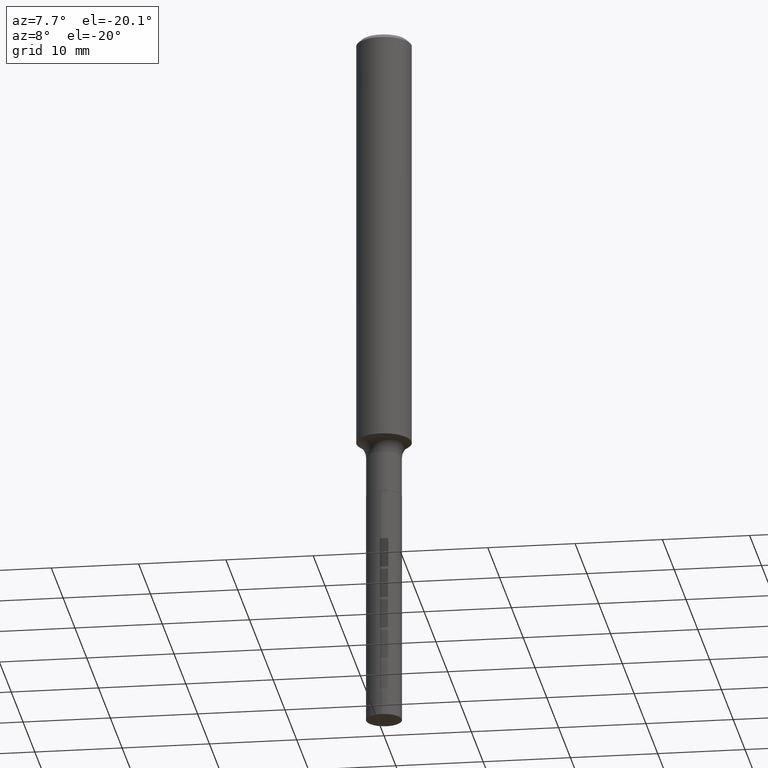
[diagram: clean part render]
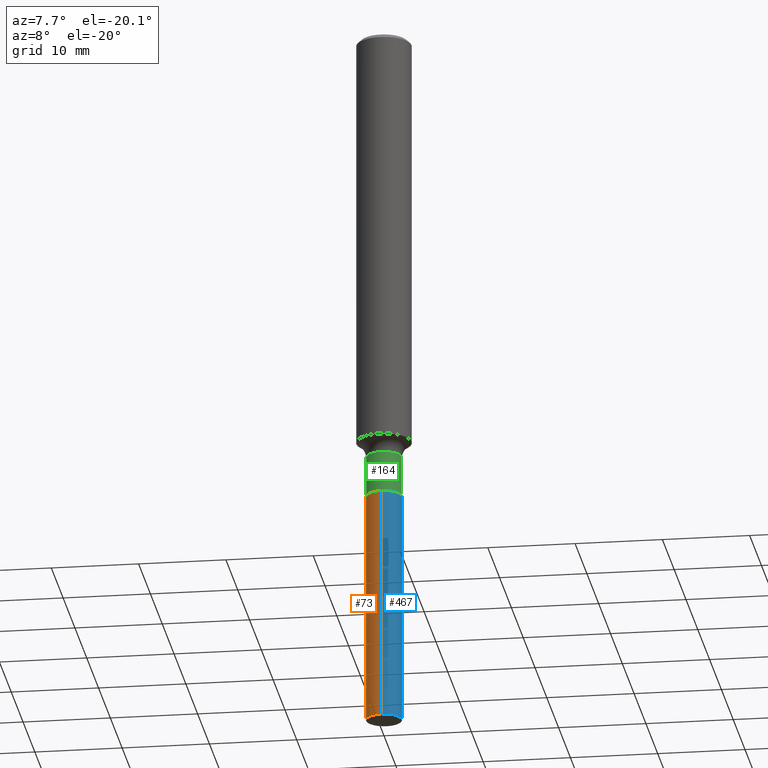
[diagram: same view with three faces highlighted in distinct colors, each labeled with its STEP entity id]
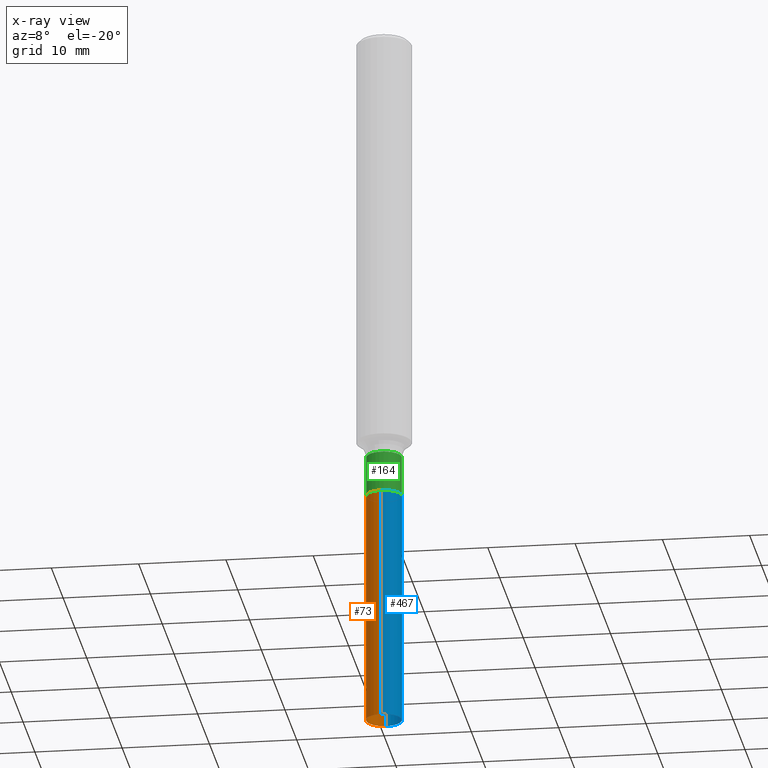
[diagram: x-ray of the same camera — body ghosted, the three highlighted faces saturated]
A machine part, auxiliary view with three faces highlighted in distinct colors.
The next image is the same camera in x-ray (body ghosted, the three faces saturated) — at least one of them is partly hidden behind the body in this view.
Their STEP definitions:

[orange] entity #73 — the highlighted cylindrical surface (edge-blend (fillet) strip) has radius 2.0447 mm, axis along (-0, 0, 1).
#1 = DIRECTION ( 'NONE',  ( -2.445357764823605070E-29, 3.491640356392940619E-15, 1.000000000000000000 ) ) ;
#6 = CARTESIAN_POINT ( 'NONE',  ( 7.885585719558198762E-29, -1.125886426831843108E-14, -3.224618447495242179 ) ) ;
#8 = DIRECTION ( 'NONE',  ( -6.982962677686266711E-15, -1.000000000000000000, 3.393599992129519526E-15 ) ) ;
#35 = EDGE_CURVE ( 'NONE', #120, #475, #58, .T. ) ;
#43 = ORIENTED_EDGE ( 'NONE', *, *, #35, .F. ) ;
#49 = EDGE_LOOP ( 'NONE', ( #43, #166, #266, #79 ) ) ;
#58 = LINE ( 'NONE', #221, #348 ) ;
#64 = CARTESIAN_POINT ( 'NONE',  ( 5.719869022869593535E-16, 0.08049999999998874722, -3.224618447495242624 ) ) ;
#67 = DIRECTION ( 'NONE',  ( -2.445357764823605070E-29, 3.491640356392940619E-15, 1.000000000000000000 ) ) ;
#73 = ADVANCED_FACE ( 'NONE', ( #487 ), #176, .T. ) ;
#79 = ORIENTED_EDGE ( 'NONE', *, *, #309, .F. ) ;
#97 = CARTESIAN_POINT ( 'NONE',  ( 5.284658090166081280E-29, -7.545091173240038191E-15, -2.161000000000000032 ) ) ;
#113 = CARTESIAN_POINT ( 'NONE',  ( -5.621284955536915100E-16, -0.08050000000000755163, -2.161000000000000032 ) ) ;
#120 = VERTEX_POINT ( 'NONE', #64 ) ;
#125 = VERTEX_POINT ( 'NONE', #299 ) ;
#142 = DIRECTION ( 'NONE',  ( -6.982962677686266711E-15, -1.000000000000000000, 3.393599992129519526E-15 ) ) ;
#144 = VECTOR ( 'NONE', #1, 39.37007874015748143 ) ;
#154 = CARTESIAN_POINT ( 'NONE',  ( -5.621284955536915100E-16, -0.08050000000000755163, -2.161000000000000032 ) ) ;
#166 = ORIENTED_EDGE ( 'NONE', *, *, #234, .T. ) ;
#176 = CYLINDRICAL_SURFACE ( 'NONE', #422, 0.08050000000000000211 ) ;
#190 = CARTESIAN_POINT ( 'NONE',  ( 5.284658090166081280E-29, -7.545091173240038191E-15, -2.161000000000000032 ) ) ;
#212 = VERTEX_POINT ( 'NONE', #113 ) ;
#217 = CIRCLE ( 'NONE', #307, 0.08050000000000000211 ) ;
#221 = CARTESIAN_POINT ( 'NONE',  ( 5.719869022869334197E-16, 0.08049999999999245259, -2.161000000000000476 ) ) ;
#228 = DIRECTION ( 'NONE',  ( -2.445357764823605070E-29, 3.491640356392940619E-15, 1.000000000000000000 ) ) ;
#231 = LINE ( 'NONE', #154, #144 ) ;
#234 = EDGE_CURVE ( 'NONE', #120, #125, #217, .T. ) ;
#258 = DIRECTION ( 'NONE',  ( -2.445357764823605070E-29, 3.491640356392940619E-15, 1.000000000000000000 ) ) ;
#263 = EDGE_CURVE ( 'NONE', #125, #212, #231, .T. ) ;
#266 = ORIENTED_EDGE ( 'NONE', *, *, #263, .T. ) ;
#299 = CARTESIAN_POINT ( 'NONE',  ( -5.621284955536654776E-16, -0.08050000000001125700, -3.224618447495241735 ) ) ;
#307 = AXIS2_PLACEMENT_3D ( 'NONE', #6, #67, #381 ) ;
#309 = EDGE_CURVE ( 'NONE', #475, #212, #490, .T. ) ;
#318 = CARTESIAN_POINT ( 'NONE',  ( 5.719869022869595507E-16, 0.08049999999999245259, -2.161000000000000476 ) ) ;
#326 = AXIS2_PLACEMENT_3D ( 'NONE', #190, #228, #8 ) ;
#348 = VECTOR ( 'NONE', #258, 39.37007874015748143 ) ;
#381 = DIRECTION ( 'NONE',  ( -6.982962677686266711E-15, -1.000000000000000000, 6.787199984259039052E-15 ) ) ;
#422 = AXIS2_PLACEMENT_3D ( 'NONE', #97, #489, #142 ) ;
#475 = VERTEX_POINT ( 'NONE', #318 ) ;
#487 = FACE_OUTER_BOUND ( 'NONE', #49, .T. ) ;
#489 = DIRECTION ( 'NONE',  ( -2.445357764823605070E-29, 3.491640356392940619E-15, 1.000000000000000000 ) ) ;
#490 = CIRCLE ( 'NONE', #326, 0.08050000000000000211 ) ;

[blue] entity #467 — the highlighted cylindrical surface (edge-blend (fillet) strip) has radius 2.0447 mm, axis along (-0, 0, 1).
#1 = DIRECTION ( 'NONE',  ( -2.445357764823605070E-29, 3.491640356392940619E-15, 1.000000000000000000 ) ) ;
#11 = CIRCLE ( 'NONE', #233, 0.08050000000000000211 ) ;
#14 = FACE_OUTER_BOUND ( 'NONE', #129, .T. ) ;
#35 = EDGE_CURVE ( 'NONE', #120, #475, #58, .T. ) ;
#58 = LINE ( 'NONE', #221, #348 ) ;
#64 = CARTESIAN_POINT ( 'NONE',  ( 5.719869022869593535E-16, 0.08049999999998874722, -3.224618447495242624 ) ) ;
#72 = DIRECTION ( 'NONE',  ( -6.982962677686266711E-15, -1.000000000000000000, 3.393599992129519526E-15 ) ) ;
#113 = CARTESIAN_POINT ( 'NONE',  ( -5.621284955536915100E-16, -0.08050000000000755163, -2.161000000000000032 ) ) ;
#116 = CARTESIAN_POINT ( 'NONE',  ( 5.284658090166081280E-29, -7.545091173240038191E-15, -2.161000000000000032 ) ) ;
#120 = VERTEX_POINT ( 'NONE', #64 ) ;
#122 = CIRCLE ( 'NONE', #151, 0.08050000000000000211 ) ;
#125 = VERTEX_POINT ( 'NONE', #299 ) ;
#129 = EDGE_LOOP ( 'NONE', ( #313, #283, #194, #328 ) ) ;
#144 = VECTOR ( 'NONE', #1, 39.37007874015748143 ) ;
#151 = AXIS2_PLACEMENT_3D ( 'NONE', #272, #349, #189 ) ;
#154 = CARTESIAN_POINT ( 'NONE',  ( -5.621284955536915100E-16, -0.08050000000000755163, -2.161000000000000032 ) ) ;
#156 = CYLINDRICAL_SURFACE ( 'NONE', #188, 0.08050000000000000211 ) ;
#188 = AXIS2_PLACEMENT_3D ( 'NONE', #116, #277, #206 ) ;
#189 = DIRECTION ( 'NONE',  ( -6.982962677686266711E-15, -1.000000000000000000, 6.787199984259039052E-15 ) ) ;
#194 = ORIENTED_EDGE ( 'NONE', *, *, #229, .F. ) ;
#206 = DIRECTION ( 'NONE',  ( -6.982962677686266711E-15, -1.000000000000000000, 3.393599992129519526E-15 ) ) ;
#212 = VERTEX_POINT ( 'NONE', #113 ) ;
#219 = EDGE_CURVE ( 'NONE', #125, #120, #122, .T. ) ;
#221 = CARTESIAN_POINT ( 'NONE',  ( 5.719869022869334197E-16, 0.08049999999999245259, -2.161000000000000476 ) ) ;
#229 = EDGE_CURVE ( 'NONE', #212, #475, #11, .T. ) ;
#231 = LINE ( 'NONE', #154, #144 ) ;
#233 = AXIS2_PLACEMENT_3D ( 'NONE', #423, #344, #72 ) ;
#258 = DIRECTION ( 'NONE',  ( -2.445357764823605070E-29, 3.491640356392940619E-15, 1.000000000000000000 ) ) ;
#263 = EDGE_CURVE ( 'NONE', #125, #212, #231, .T. ) ;
#272 = CARTESIAN_POINT ( 'NONE',  ( 7.885585719558198762E-29, -1.125886426831843108E-14, -3.224618447495242179 ) ) ;
#277 = DIRECTION ( 'NONE',  ( -2.445357764823605070E-29, 3.491640356392940619E-15, 1.000000000000000000 ) ) ;
#283 = ORIENTED_EDGE ( 'NONE', *, *, #35, .T. ) ;
#299 = CARTESIAN_POINT ( 'NONE',  ( -5.621284955536654776E-16, -0.08050000000001125700, -3.224618447495241735 ) ) ;
#313 = ORIENTED_EDGE ( 'NONE', *, *, #219, .T. ) ;
#318 = CARTESIAN_POINT ( 'NONE',  ( 5.719869022869595507E-16, 0.08049999999999245259, -2.161000000000000476 ) ) ;
#328 = ORIENTED_EDGE ( 'NONE', *, *, #263, .F. ) ;
#344 = DIRECTION ( 'NONE',  ( -2.445357764823605070E-29, 3.491640356392940619E-15, 1.000000000000000000 ) ) ;
#348 = VECTOR ( 'NONE', #258, 39.37007874015748143 ) ;
#349 = DIRECTION ( 'NONE',  ( -2.445357764823605070E-29, 3.491640356392940619E-15, 1.000000000000000000 ) ) ;
#423 = CARTESIAN_POINT ( 'NONE',  ( 5.284658090166081280E-29, -7.545091173240038191E-15, -2.161000000000000032 ) ) ;
#467 = ADVANCED_FACE ( 'NONE', ( #14 ), #156, .T. ) ;
#475 = VERTEX_POINT ( 'NONE', #318 ) ;

[green] entity #164 — the highlighted cylindrical surface (edge-blend (fillet) strip) has radius 2.0447 mm, axis along (-0, 0, 1).
#10 = AXIS2_PLACEMENT_3D ( 'NONE', #413, #480, #293 ) ;
#18 = ORIENTED_EDGE ( 'NONE', *, *, #76, .T. ) ;
#29 = CYLINDRICAL_SURFACE ( 'NONE', #403, 0.08050000000000000211 ) ;
#37 = VECTOR ( 'NONE', #140, 39.37007874015748143 ) ;
#50 = EDGE_CURVE ( 'NONE', #108, #316, #411, .T. ) ;
#70 = CARTESIAN_POINT ( 'NONE',  ( 0.08049999999999998823, -7.460597324840031108E-15, -1.975800000000000001 ) ) ;
#76 = EDGE_CURVE ( 'NONE', #200, #316, #408, .T. ) ;
#86 = EDGE_LOOP ( 'NONE', ( #394, #155, #18, #161 ) ) ;
#108 = VERTEX_POINT ( 'NONE', #369 ) ;
#131 = CARTESIAN_POINT ( 'NONE',  ( 5.283435355762988478E-29, -7.543345432570617477E-15, -2.160500000000000309 ) ) ;
#140 = DIRECTION ( 'NONE',  ( -2.445468806185136877E-29, 3.491481338843145188E-15, 1.000000000000000000 ) ) ;
#143 = CIRCLE ( 'NONE', #334, 0.08050000000000000211 ) ;
#147 = EDGE_CURVE ( 'NONE', #402, #200, #143, .T. ) ;
#152 = CARTESIAN_POINT ( 'NONE',  ( -0.08050000000000000211, 5.719869022868806646E-16, -3.959742747655199208E-30 ) ) ;
#155 = ORIENTED_EDGE ( 'NONE', *, *, #147, .T. ) ;
#158 = VECTOR ( 'NONE', #310, 39.37007874015748143 ) ;
#161 = ORIENTED_EDGE ( 'NONE', *, *, #50, .F. ) ;
#164 = ADVANCED_FACE ( 'NONE', ( #477 ), #29, .T. ) ;
#179 = CARTESIAN_POINT ( 'NONE',  ( 0.08050000000000000211, -5.621284955537444623E-16, 3.925322304515727977E-30 ) ) ;
#180 = EDGE_CURVE ( 'NONE', #402, #108, #410, .T. ) ;
#182 = DIRECTION ( 'NONE',  ( -2.445468806185136597E-29, 3.491481338843145583E-15, 1.000000000000000000 ) ) ;
#200 = VERTEX_POINT ( 'NONE', #303 ) ;
#293 = DIRECTION ( 'NONE',  ( 1.000000000000000000, -6.982962677686267499E-15, 0.000000000000000000 ) ) ;
#294 = DIRECTION ( 'NONE',  ( 1.000000000000000000, -6.982962677686266711E-15, 4.876176775795935232E-29 ) ) ;
#303 = CARTESIAN_POINT ( 'NONE',  ( 0.08050000000000000211, -8.105473928124362136E-15, -2.160500000000000309 ) ) ;
#310 = DIRECTION ( 'NONE',  ( -2.445468806185136877E-29, 3.491481338843145188E-15, 1.000000000000000000 ) ) ;
#316 = VERTEX_POINT ( 'NONE', #70 ) ;
#331 = CARTESIAN_POINT ( 'NONE',  ( 0.000000000000000000, 0.000000000000000000, 0.000000000000000000 ) ) ;
#334 = AXIS2_PLACEMENT_3D ( 'NONE', #131, #377, #484 ) ;
#353 = CARTESIAN_POINT ( 'NONE',  ( -0.08050000000000000211, -6.648920228641571199E-15, -2.160500000000000309 ) ) ;
#369 = CARTESIAN_POINT ( 'NONE',  ( -0.08049999999999998823, -6.648920228641571199E-15, -1.975800000000000001 ) ) ;
#377 = DIRECTION ( 'NONE',  ( -2.445468806185136597E-29, 3.491481338843145583E-15, 1.000000000000000000 ) ) ;
#394 = ORIENTED_EDGE ( 'NONE', *, *, #180, .F. ) ;
#402 = VERTEX_POINT ( 'NONE', #353 ) ;
#403 = AXIS2_PLACEMENT_3D ( 'NONE', #331, #182, #294 ) ;
#408 = LINE ( 'NONE', #179, #37 ) ;
#410 = LINE ( 'NONE', #152, #158 ) ;
#411 = CIRCLE ( 'NONE', #10, 0.08049999999999998823 ) ;
#413 = CARTESIAN_POINT ( 'NONE',  ( 4.831757267260592925E-29, -6.898468829286286448E-15, -1.975800000000000001 ) ) ;
#477 = FACE_OUTER_BOUND ( 'NONE', #86, .T. ) ;
#480 = DIRECTION ( 'NONE',  ( -2.445468806185136597E-29, 3.491481338843145583E-15, 1.000000000000000000 ) ) ;
#484 = DIRECTION ( 'NONE',  ( 1.000000000000000000, -6.982962677686266711E-15, 0.000000000000000000 ) ) ;